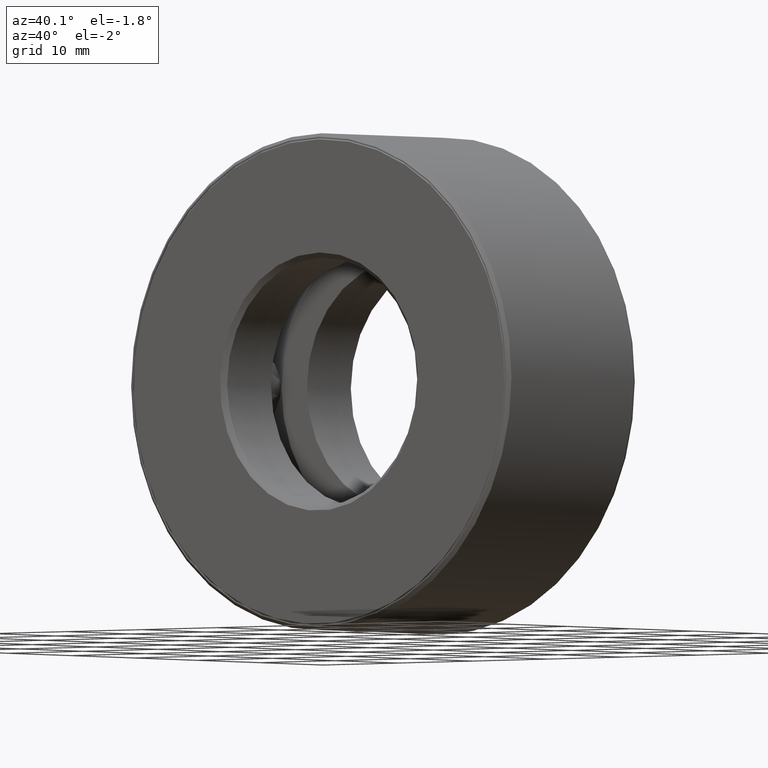
[diagram: clean part render]
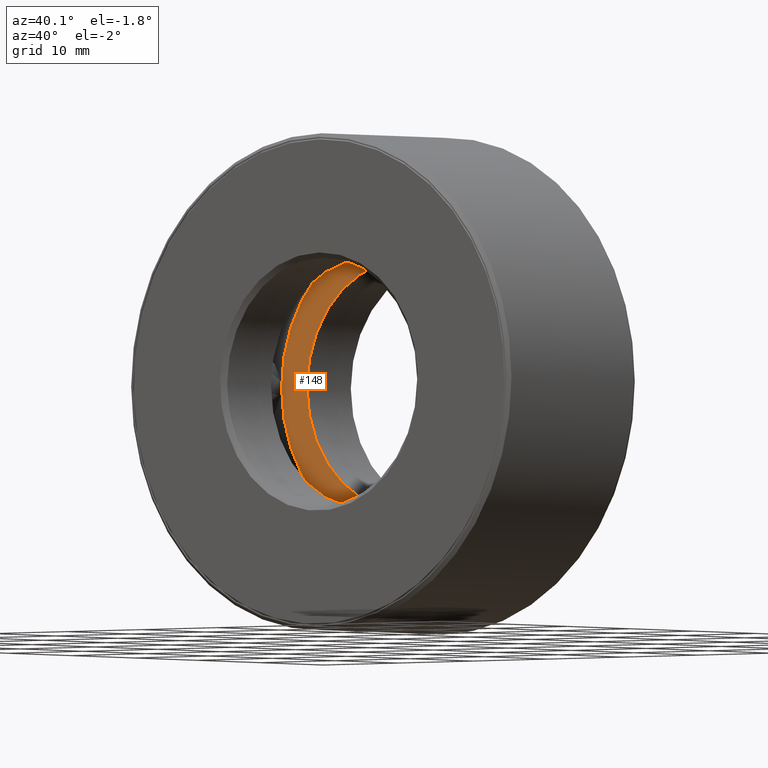
[diagram: same view with one face highlighted and labeled with its STEP entity id]
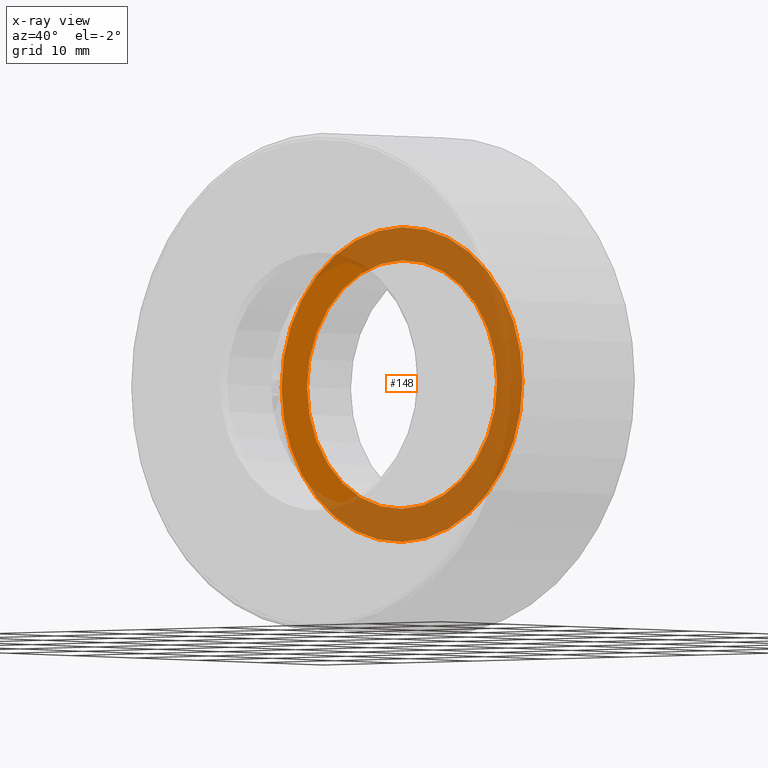
[diagram: x-ray of the same camera — body ghosted, the highlighted face saturated]
A machine part, auxiliary view. The second image highlights one B-rep face of the part: STEP entity #148.
The next image is the same camera in x-ray: the body ghosted, the highlighted face saturated — about 69% of this face is hidden behind the body in this view.
In plain terms, the highlighted planar face has unit normal (0, -1, 0).
Its self-contained STEP definition (entity closure, byte-faithful):
#6 = VERTEX_POINT ( 'NONE', #83 ) ;
#27 = DIRECTION ( 'NONE',  ( -0.0000000000000000000, 1.000000000000000000, -0.0000000000000000000 ) ) ;
#83 = CARTESIAN_POINT ( 'NONE',  ( 0.0000000000000000000, 0.5187500000000000400, 0.5000000000000001100 ) ) ;
#87 = DIRECTION ( 'NONE',  ( 0.0000000000000000000, 0.0000000000000000000, 1.000000000000000000 ) ) ;
#106 = PLANE ( 'NONE',  #179 ) ;
#145 = ORIENTED_EDGE ( 'NONE', *, *, #472, .F. ) ;
#148 = ADVANCED_FACE ( 'NONE', ( #260, #557 ), #106, .T. ) ;
#177 = CARTESIAN_POINT ( 'NONE',  ( 0.0000000000000000000, 0.5187499999999999300, 0.6334999999999998400 ) ) ;
#179 = AXIS2_PLACEMENT_3D ( 'NONE', #289, #431, #243 ) ;
#239 = AXIS2_PLACEMENT_3D ( 'NONE', #591, #276, #87 ) ;
#240 = EDGE_LOOP ( 'NONE', ( #452 ) ) ;
#243 = DIRECTION ( 'NONE',  ( 0.0000000000000000000, -0.0000000000000000000, -1.000000000000000000 ) ) ;
#260 = FACE_BOUND ( 'NONE', #240, .T. ) ;
#276 = DIRECTION ( 'NONE',  ( -0.0000000000000000000, 1.000000000000000000, -0.0000000000000000000 ) ) ;
#289 = CARTESIAN_POINT ( 'NONE',  ( -2.653831735418240000E-016, 0.5187500000000000400, 0.0000000000000000000 ) ) ;
#306 = AXIS2_PLACEMENT_3D ( 'NONE', #307, #27, #496 ) ;
#307 = CARTESIAN_POINT ( 'NONE',  ( 0.0000000000000000000, 0.5187499999999999300, 0.0000000000000000000 ) ) ;
#342 = EDGE_LOOP ( 'NONE', ( #145 ) ) ;
#403 = CIRCLE ( 'NONE', #306, 0.6334999999999998400 ) ;
#431 = DIRECTION ( 'NONE',  ( 0.0000000000000000000, -1.000000000000000000, 0.0000000000000000000 ) ) ;
#452 = ORIENTED_EDGE ( 'NONE', *, *, #570, .T. ) ;
#472 = EDGE_CURVE ( 'NONE', #561, #561, #403, .T. ) ;
#496 = DIRECTION ( 'NONE',  ( 0.0000000000000000000, 0.0000000000000000000, 1.000000000000000000 ) ) ;
#549 = CIRCLE ( 'NONE', #239, 0.5000000000000001100 ) ;
#557 = FACE_OUTER_BOUND ( 'NONE', #342, .T. ) ;
#561 = VERTEX_POINT ( 'NONE', #177 ) ;
#570 = EDGE_CURVE ( 'NONE', #6, #6, #549, .T. ) ;
#591 = CARTESIAN_POINT ( 'NONE',  ( 0.0000000000000000000, 0.5187500000000000400, 0.0000000000000000000 ) ) ;